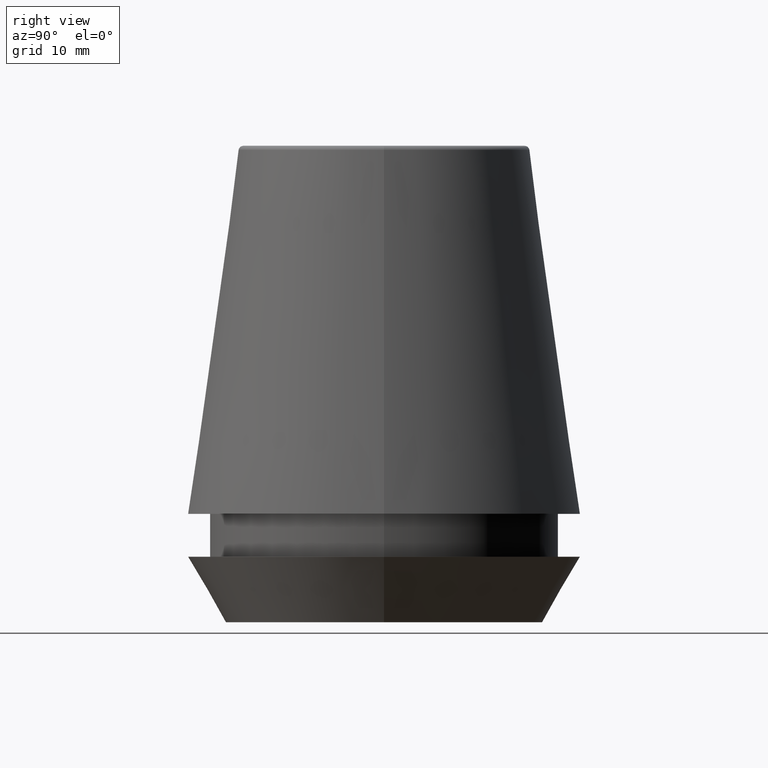
[diagram: clean part render]
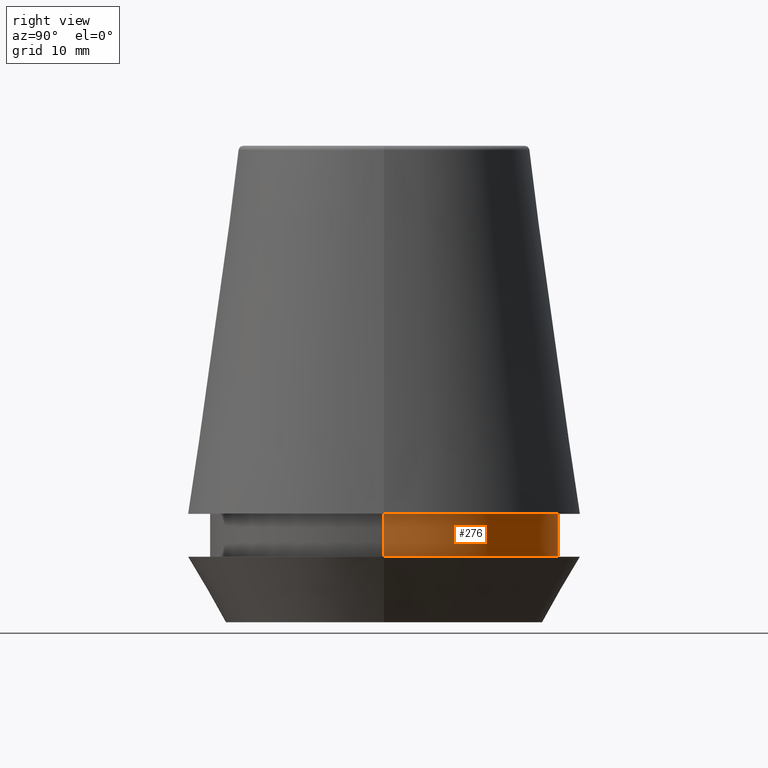
[diagram: same view with one face highlighted and labeled with its STEP entity id]
A machine part, right view. The second image highlights one B-rep face of the part: STEP entity #276.
In plain terms, the highlighted cylindrical surface (partial cylindrical patch) has radius 14.6 mm, axis along (-0, -0, 1).
Its self-contained STEP definition (entity closure, byte-faithful):
#10 = VECTOR ( 'NONE', #267, 1000.000000000000000 ) ;
#17 = VECTOR ( 'NONE', #297, 1000.000000000000000 ) ;
#26 = EDGE_CURVE ( 'NONE', #131, #158, #270, .T. ) ;
#52 = LINE ( 'NONE', #339, #10 ) ;
#61 = DIRECTION ( 'NONE',  ( -0.0000000000000000000, -0.0000000000000000000, 1.000000000000000000 ) ) ;
#63 = CARTESIAN_POINT ( 'NONE',  ( 14.60000000000000000, 0.0000000000000000000, 9.099999999999997900 ) ) ;
#90 = DIRECTION ( 'NONE',  ( 1.000000000000000000, 0.0000000000000000000, 0.0000000000000000000 ) ) ;
#96 = ORIENTED_EDGE ( 'NONE', *, *, #26, .F. ) ;
#99 = CARTESIAN_POINT ( 'NONE',  ( 0.0000000000000000000, 0.0000000000000000000, 5.500000000000005300 ) ) ;
#104 = AXIS2_PLACEMENT_3D ( 'NONE', #99, #321, #90 ) ;
#105 = ORIENTED_EDGE ( 'NONE', *, *, #198, .F. ) ;
#107 = CARTESIAN_POINT ( 'NONE',  ( 14.60000000000000000, 0.0000000000000000000, 5.500000000000005300 ) ) ;
#110 = CARTESIAN_POINT ( 'NONE',  ( 0.0000000000000000000, 0.0000000000000000000, 101.8074564848000400 ) ) ;
#114 = ORIENTED_EDGE ( 'NONE', *, *, #315, .T. ) ;
#118 = LINE ( 'NONE', #183, #17 ) ;
#119 = VERTEX_POINT ( 'NONE', #107 ) ;
#121 = VERTEX_POINT ( 'NONE', #242 ) ;
#131 = VERTEX_POINT ( 'NONE', #63 ) ;
#157 = FACE_OUTER_BOUND ( 'NONE', #325, .T. ) ;
#158 = VERTEX_POINT ( 'NONE', #214 ) ;
#183 = CARTESIAN_POINT ( 'NONE',  ( -14.60000000000000000, 1.787984326755135800E-015, 101.8074564848000400 ) ) ;
#188 = DIRECTION ( 'NONE',  ( -0.0000000000000000000, -0.0000000000000000000, 1.000000000000000000 ) ) ;
#198 = EDGE_CURVE ( 'NONE', #119, #131, #52, .T. ) ;
#204 = AXIS2_PLACEMENT_3D ( 'NONE', #110, #61, #250 ) ;
#214 = CARTESIAN_POINT ( 'NONE',  ( -14.60000000000000000, 1.787984326755135800E-015, 9.099999999999997900 ) ) ;
#242 = CARTESIAN_POINT ( 'NONE',  ( -14.60000000000000000, 1.787984326755135800E-015, 5.500000000000005300 ) ) ;
#248 = EDGE_CURVE ( 'NONE', #119, #121, #264, .T. ) ;
#250 = DIRECTION ( 'NONE',  ( 1.000000000000000000, 0.0000000000000000000, 0.0000000000000000000 ) ) ;
#264 = CIRCLE ( 'NONE', #104, 14.60000000000000000 ) ;
#265 = AXIS2_PLACEMENT_3D ( 'NONE', #356, #188, #281 ) ;
#267 = DIRECTION ( 'NONE',  ( -0.0000000000000000000, -0.0000000000000000000, 1.000000000000000000 ) ) ;
#270 = CIRCLE ( 'NONE', #265, 14.60000000000000000 ) ;
#276 = ADVANCED_FACE ( 'NONE', ( #157 ), #284, .T. ) ;
#281 = DIRECTION ( 'NONE',  ( 1.000000000000000000, 0.0000000000000000000, 0.0000000000000000000 ) ) ;
#284 = CYLINDRICAL_SURFACE ( 'NONE', #204, 14.60000000000000000 ) ;
#297 = DIRECTION ( 'NONE',  ( -0.0000000000000000000, -0.0000000000000000000, 1.000000000000000000 ) ) ;
#313 = ORIENTED_EDGE ( 'NONE', *, *, #248, .T. ) ;
#315 = EDGE_CURVE ( 'NONE', #121, #158, #118, .T. ) ;
#321 = DIRECTION ( 'NONE',  ( -0.0000000000000000000, -0.0000000000000000000, 1.000000000000000000 ) ) ;
#325 = EDGE_LOOP ( 'NONE', ( #313, #114, #96, #105 ) ) ;
#339 = CARTESIAN_POINT ( 'NONE',  ( 14.60000000000000000, 0.0000000000000000000, 101.8074564848000400 ) ) ;
#356 = CARTESIAN_POINT ( 'NONE',  ( 0.0000000000000000000, 0.0000000000000000000, 9.099999999999997900 ) ) ;